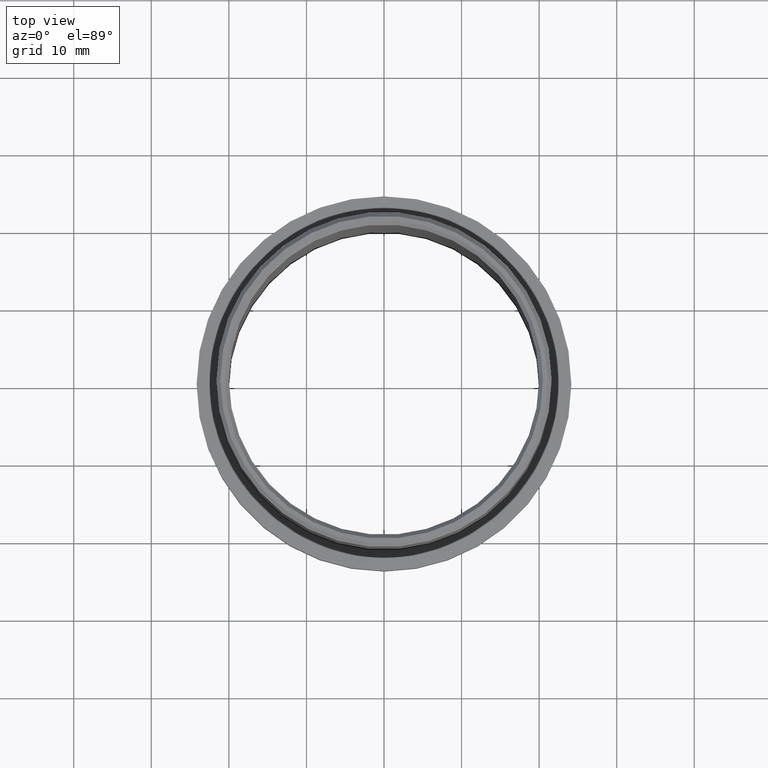
[diagram: clean part render]
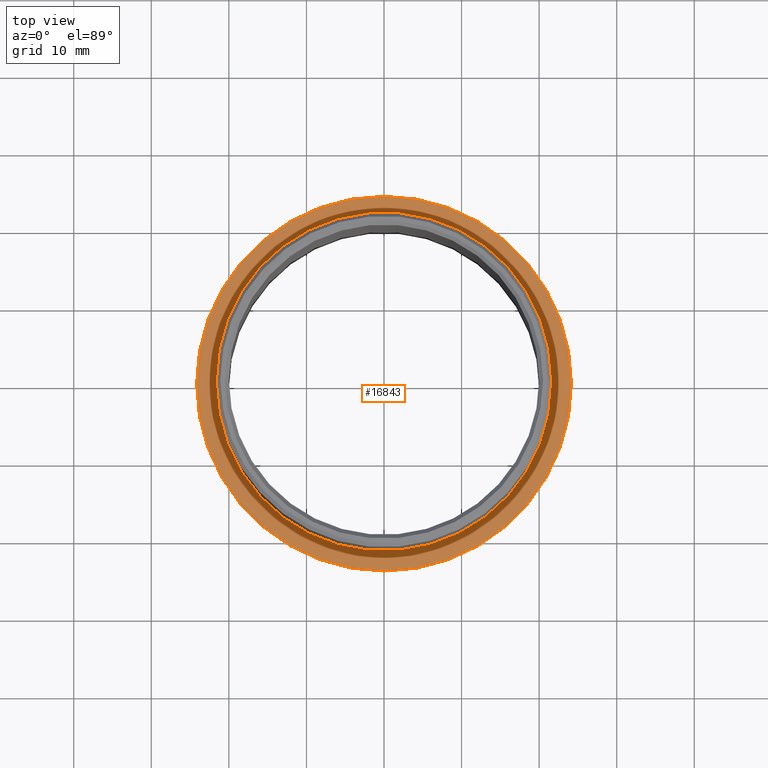
[diagram: same view with one face highlighted and labeled with its STEP entity id]
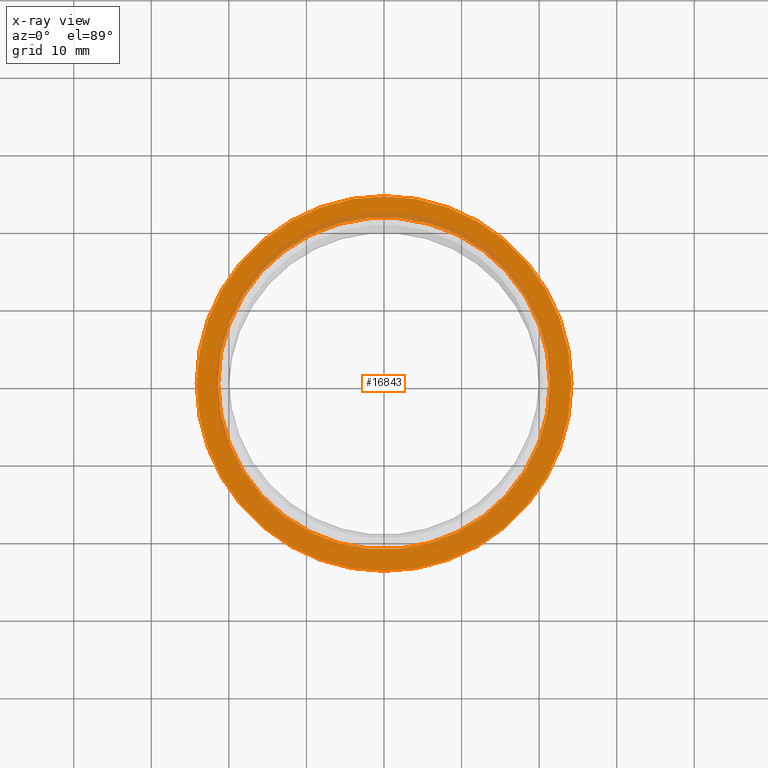
[diagram: x-ray of the same camera — body ghosted, the highlighted face saturated]
A machine part, top view. The second image highlights one B-rep face of the part: STEP entity #16843.
The next image is the same camera in x-ray: the body ghosted, the highlighted face saturated — about 11% of this face is hidden behind the body in this view.
In plain terms, the highlighted planar face has unit normal (0, 0, 1).
Its self-contained STEP definition (entity closure, byte-faithful):
#37 = EDGE_CURVE ( 'NONE', #6263, #123, #6446, .T. ) ;
#123 = VERTEX_POINT ( 'NONE', #22257 ) ;
#324 = FACE_BOUND ( 'NONE', #15380, .T. ) ;
#1719 = ORIENTED_EDGE ( 'NONE', *, *, #37, .F. ) ;
#3725 = ORIENTED_EDGE ( 'NONE', *, *, #4083, .F. ) ;
#4083 = EDGE_CURVE ( 'NONE', #123, #6263, #22240, .T. ) ;
#4583 = VERTEX_POINT ( 'NONE', #17590 ) ;
#4672 = ORIENTED_EDGE ( 'NONE', *, *, #7888, .T. ) ;
#4925 = CARTESIAN_POINT ( 'NONE',  ( 0.0000000000000000000, 0.0000000000000000000, 2.500000000000000000 ) ) ;
#5808 = EDGE_CURVE ( 'NONE', #4583, #6160, #10020, .T. ) ;
#6160 = VERTEX_POINT ( 'NONE', #11199 ) ;
#6263 = VERTEX_POINT ( 'NONE', #18678 ) ;
#6446 = CIRCLE ( 'NONE', #12602, 21.39999999999999900 ) ;
#6755 = DIRECTION ( 'NONE',  ( 0.0000000000000000000, 0.0000000000000000000, 1.000000000000000000 ) ) ;
#7787 = CIRCLE ( 'NONE', #22739, 24.15000000000000600 ) ;
#7888 = EDGE_CURVE ( 'NONE', #6160, #4583, #7787, .T. ) ;
#7937 = AXIS2_PLACEMENT_3D ( 'NONE', #17628, #15730, #8477 ) ;
#8477 = DIRECTION ( 'NONE',  ( 1.000000000000000000, 0.0000000000000000000, 0.0000000000000000000 ) ) ;
#10020 = CIRCLE ( 'NONE', #22859, 24.15000000000000600 ) ;
#11199 = CARTESIAN_POINT ( 'NONE',  ( 24.15000000000000600, 2.957522019940858700E-015, 2.500000000000000000 ) ) ;
#11204 = DIRECTION ( 'NONE',  ( 1.000000000000000000, 0.0000000000000000000, -0.0000000000000000000 ) ) ;
#11275 = PLANE ( 'NONE',  #17212 ) ;
#11670 = DIRECTION ( 'NONE',  ( 1.000000000000000000, 0.0000000000000000000, 0.0000000000000000000 ) ) ;
#12602 = AXIS2_PLACEMENT_3D ( 'NONE', #4925, #6755, #19422 ) ;
#13088 = CARTESIAN_POINT ( 'NONE',  ( 0.0000000000000000000, 0.0000000000000000000, 2.500000000000000000 ) ) ;
#13264 = DIRECTION ( 'NONE',  ( 0.0000000000000000000, 0.0000000000000000000, 1.000000000000000000 ) ) ;
#13568 = DIRECTION ( 'NONE',  ( 1.000000000000000000, 0.0000000000000000000, 0.0000000000000000000 ) ) ;
#15380 = EDGE_LOOP ( 'NONE', ( #3725, #1719 ) ) ;
#15730 = DIRECTION ( 'NONE',  ( 0.0000000000000000000, 0.0000000000000000000, 1.000000000000000000 ) ) ;
#16843 = ADVANCED_FACE ( 'NONE', ( #324, #18729 ), #11275, .T. ) ;
#17212 = AXIS2_PLACEMENT_3D ( 'NONE', #13088, #22141, #11204 ) ;
#17590 = CARTESIAN_POINT ( 'NONE',  ( -24.15000000000000600, 0.0000000000000000000, 2.500000000000000000 ) ) ;
#17628 = CARTESIAN_POINT ( 'NONE',  ( 0.0000000000000000000, 0.0000000000000000000, 2.500000000000000000 ) ) ;
#18122 = EDGE_LOOP ( 'NONE', ( #20620, #4672 ) ) ;
#18678 = CARTESIAN_POINT ( 'NONE',  ( 21.39999999999999900, 2.620744150175335900E-015, 2.500000000000000000 ) ) ;
#18729 = FACE_OUTER_BOUND ( 'NONE', #18122, .T. ) ;
#18871 = CARTESIAN_POINT ( 'NONE',  ( 0.0000000000000000000, 0.0000000000000000000, 2.500000000000000000 ) ) ;
#19422 = DIRECTION ( 'NONE',  ( 1.000000000000000000, 0.0000000000000000000, 0.0000000000000000000 ) ) ;
#20556 = DIRECTION ( 'NONE',  ( 0.0000000000000000000, 0.0000000000000000000, 1.000000000000000000 ) ) ;
#20620 = ORIENTED_EDGE ( 'NONE', *, *, #5808, .T. ) ;
#20784 = CARTESIAN_POINT ( 'NONE',  ( 0.0000000000000000000, 0.0000000000000000000, 2.500000000000000000 ) ) ;
#22141 = DIRECTION ( 'NONE',  ( 0.0000000000000000000, 0.0000000000000000000, 1.000000000000000000 ) ) ;
#22240 = CIRCLE ( 'NONE', #7937, 21.39999999999999900 ) ;
#22257 = CARTESIAN_POINT ( 'NONE',  ( -21.39999999999999900, 0.0000000000000000000, 2.500000000000000000 ) ) ;
#22739 = AXIS2_PLACEMENT_3D ( 'NONE', #20784, #20556, #13568 ) ;
#22859 = AXIS2_PLACEMENT_3D ( 'NONE', #18871, #13264, #11670 ) ;